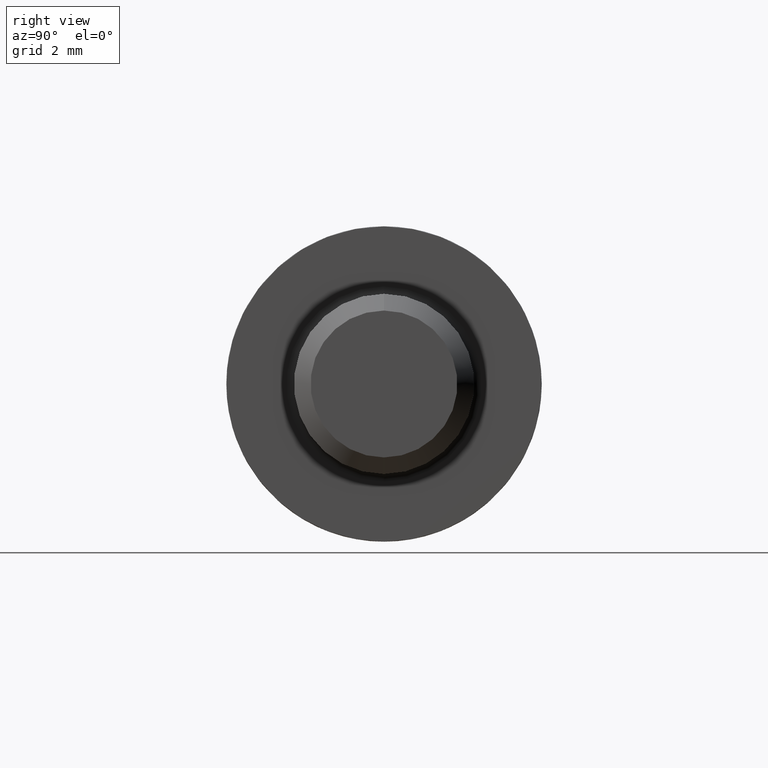
[diagram: clean part render]
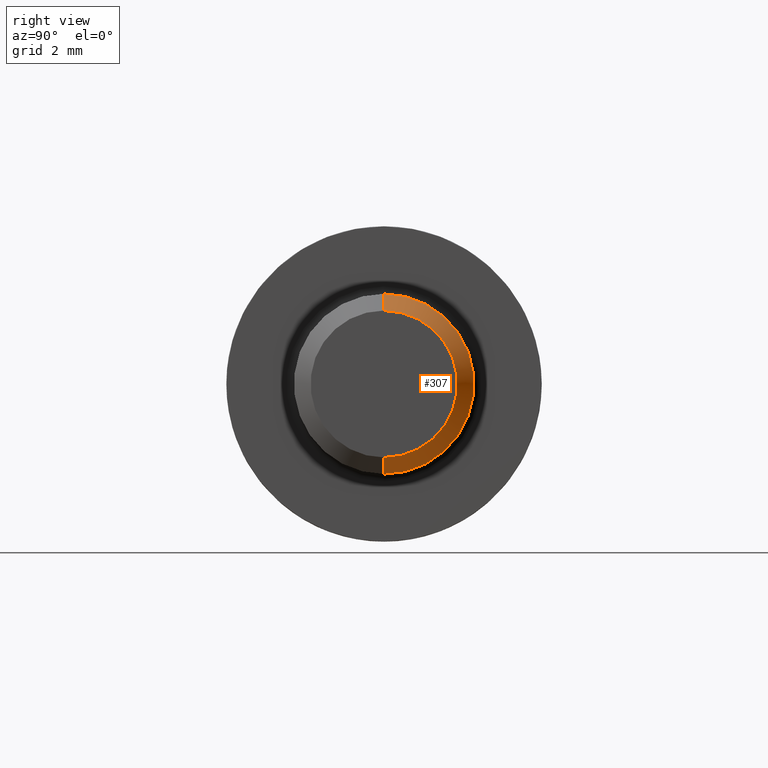
[diagram: same view with one face highlighted and labeled with its STEP entity id]
A machine part, right view. The second image highlights one B-rep face of the part: STEP entity #307.
In plain terms, the highlighted conical surface has half-angle 45 deg.
Its self-contained STEP definition (entity closure, byte-faithful):
#1 = CARTESIAN_POINT ( 'NONE',  ( 19.30000000000000426, 0.000000000000000000, 2.445499999999999563 ) ) ;
#75 = ORIENTED_EDGE ( 'NONE', *, *, #549, .F. ) ;
#76 = DIRECTION ( 'NONE',  ( -1.000000000000000000, -0.000000000000000000, -0.000000000000000000 ) ) ;
#129 = DIRECTION ( 'NONE',  ( 0.000000000000000000, 0.000000000000000000, 1.000000000000000000 ) ) ;
#138 = CARTESIAN_POINT ( 'NONE',  ( 18.74550000000001759, 3.673940397442050500E-16, -2.999999999999992450 ) ) ;
#143 = FACE_OUTER_BOUND ( 'NONE', #696, .T. ) ;
#157 = CIRCLE ( 'NONE', #457, 2.445499999999999563 ) ;
#167 = EDGE_CURVE ( 'NONE', #707, #223, #574, .T. ) ;
#206 = DIRECTION ( 'NONE',  ( -1.000000000000000000, -0.000000000000000000, -0.000000000000000000 ) ) ;
#223 = VERTEX_POINT ( 'NONE', #138 ) ;
#256 = DIRECTION ( 'NONE',  ( -1.000000000000000000, -0.000000000000000000, -0.000000000000000000 ) ) ;
#275 = EDGE_CURVE ( 'NONE', #365, #223, #649, .T. ) ;
#279 = AXIS2_PLACEMENT_3D ( 'NONE', #501, #256, #129 ) ;
#302 = CARTESIAN_POINT ( 'NONE',  ( 19.30000000000000426, 0.000000000000000000, 2.445499999999999563 ) ) ;
#307 = ADVANCED_FACE ( 'NONE', ( #143 ), #517, .T. ) ;
#315 = CARTESIAN_POINT ( 'NONE',  ( 19.30000000000000426, 0.000000000000000000, 0.000000000000000000 ) ) ;
#365 = VERTEX_POINT ( 'NONE', #580 ) ;
#384 = CARTESIAN_POINT ( 'NONE',  ( 19.30000000000000426, 0.000000000000000000, 0.000000000000000000 ) ) ;
#387 = ORIENTED_EDGE ( 'NONE', *, *, #167, .T. ) ;
#457 = AXIS2_PLACEMENT_3D ( 'NONE', #315, #76, #613 ) ;
#466 = CARTESIAN_POINT ( 'NONE',  ( 19.30000000000000426, 2.994873747314851985E-16, -2.445499999999999563 ) ) ;
#477 = DIRECTION ( 'NONE',  ( -0.7071067811865431318, 0.000000000000000000, 0.7071067811865520136 ) ) ;
#501 = CARTESIAN_POINT ( 'NONE',  ( 18.74550000000001759, 0.000000000000000000, 0.000000000000000000 ) ) ;
#517 = CONICAL_SURFACE ( 'NONE', #604, 2.445499999999999563, 0.7853981633974547183 ) ;
#547 = CARTESIAN_POINT ( 'NONE',  ( 19.30000000000000426, 3.334407072378450749E-16, -2.445499999999999563 ) ) ;
#549 = EDGE_CURVE ( 'NONE', #712, #365, #647, .T. ) ;
#562 = DIRECTION ( 'NONE',  ( 0.000000000000000000, 0.000000000000000000, 1.000000000000000000 ) ) ;
#574 = LINE ( 'NONE', #466, #660 ) ;
#580 = CARTESIAN_POINT ( 'NONE',  ( 18.74550000000001759, 0.000000000000000000, 2.999999999999992450 ) ) ;
#600 = ORIENTED_EDGE ( 'NONE', *, *, #693, .T. ) ;
#604 = AXIS2_PLACEMENT_3D ( 'NONE', #384, #206, #562 ) ;
#613 = DIRECTION ( 'NONE',  ( 0.000000000000000000, 0.000000000000000000, 1.000000000000000000 ) ) ;
#647 = LINE ( 'NONE', #302, #748 ) ;
#649 = CIRCLE ( 'NONE', #279, 2.999999999999992450 ) ;
#660 = VECTOR ( 'NONE', #698, 999.9999999999998863 ) ;
#693 = EDGE_CURVE ( 'NONE', #712, #707, #157, .T. ) ;
#696 = EDGE_LOOP ( 'NONE', ( #600, #387, #766, #75 ) ) ;
#698 = DIRECTION ( 'NONE',  ( -0.7071067811865431318, 8.659560562354989558E-17, -0.7071067811865520136 ) ) ;
#707 = VERTEX_POINT ( 'NONE', #547 ) ;
#712 = VERTEX_POINT ( 'NONE', #1 ) ;
#748 = VECTOR ( 'NONE', #477, 999.9999999999998863 ) ;
#766 = ORIENTED_EDGE ( 'NONE', *, *, #275, .F. ) ;